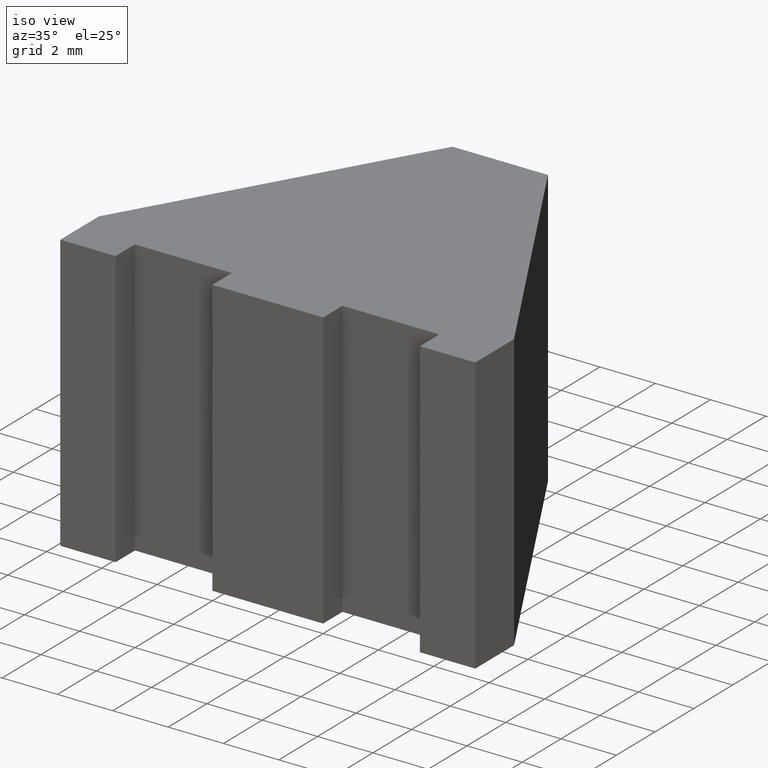
[diagram: clean part render]
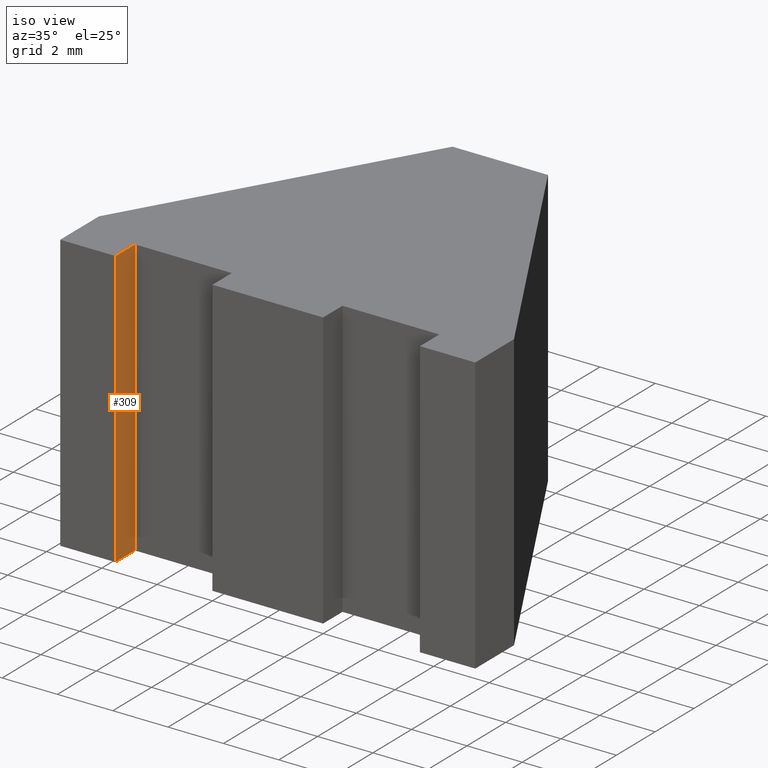
[diagram: same view with one face highlighted and labeled with its STEP entity id]
A machine part, iso view. The second image highlights one B-rep face of the part: STEP entity #309.
In plain terms, the highlighted planar face has unit normal (1, 0, 0).
Its self-contained STEP definition (entity closure, byte-faithful):
#23=FACE_OUTER_BOUND('',#39,.T.);
#39=EDGE_LOOP('',(#240,#241,#242,#243));
#56=LINE('',#453,#98);
#74=LINE('',#488,#116);
#75=LINE('',#491,#117);
#76=LINE('',#492,#118);
#98=VECTOR('',#369,10.);
#116=VECTOR('',#399,10.);
#117=VECTOR('',#402,10.);
#118=VECTOR('',#403,10.);
#140=VERTEX_POINT('',#450);
#141=VERTEX_POINT('',#452);
#152=VERTEX_POINT('',#486);
#153=VERTEX_POINT('',#490);
#168=EDGE_CURVE('',#141,#140,#56,.T.);
#186=EDGE_CURVE('',#152,#140,#74,.T.);
#187=EDGE_CURVE('',#152,#153,#75,.T.);
#188=EDGE_CURVE('',#153,#141,#76,.T.);
#240=ORIENTED_EDGE('',*,*,#187,.T.);
#241=ORIENTED_EDGE('',*,*,#188,.T.);
#242=ORIENTED_EDGE('',*,*,#168,.T.);
#243=ORIENTED_EDGE('',*,*,#186,.F.);
#293=PLANE('',#348);
#309=ADVANCED_FACE('',(#23),#293,.T.);
#348=AXIS2_PLACEMENT_3D('',#489,#400,#401);
#369=DIRECTION('',(0.,1.,0.));
#399=DIRECTION('',(0.,0.,-1.));
#400=DIRECTION('center_axis',(1.,0.,0.));
#401=DIRECTION('ref_axis',(0.,0.,-1.));
#402=DIRECTION('',(0.,-1.,0.));
#403=DIRECTION('',(0.,0.,-1.));
#450=CARTESIAN_POINT('',(-5.5,1.,-5.));
#452=CARTESIAN_POINT('',(-5.5,0.,-5.));
#453=CARTESIAN_POINT('',(-5.5,1.,-5.));
#486=CARTESIAN_POINT('',(-5.5,1.,5.));
#488=CARTESIAN_POINT('',(-5.5,1.,0.));
#489=CARTESIAN_POINT('Origin',(-5.5,1.,0.));
#490=CARTESIAN_POINT('',(-5.5,0.,5.));
#491=CARTESIAN_POINT('',(-5.5,1.,5.));
#492=CARTESIAN_POINT('',(-5.5,0.,0.));